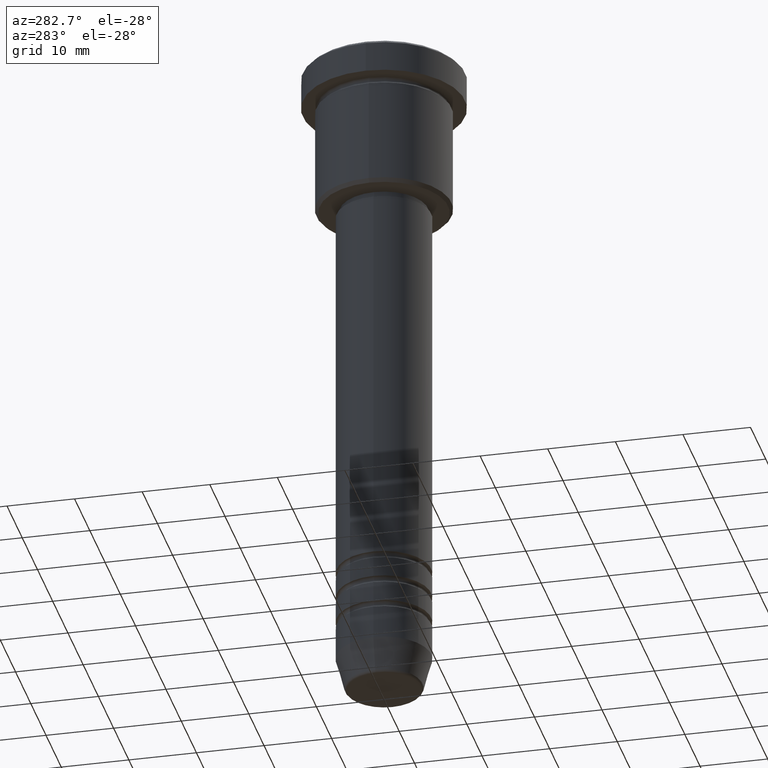
[diagram: clean part render]
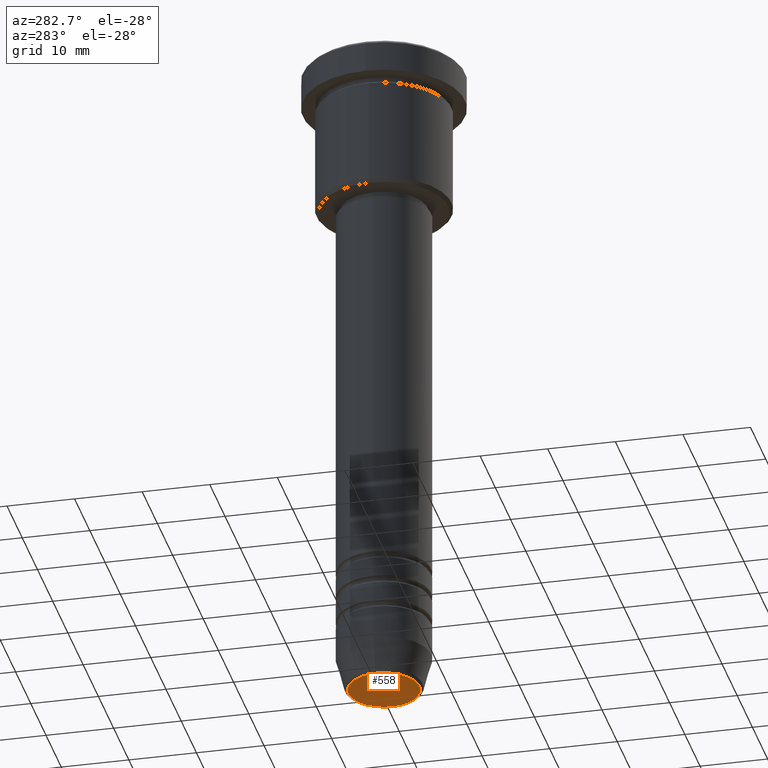
[diagram: same view with one face highlighted and labeled with its STEP entity id]
A machine part, auxiliary view. The second image highlights one B-rep face of the part: STEP entity #558.
In plain terms, the highlighted planar face has unit normal (0, -0, 1).
Its self-contained STEP definition (entity closure, byte-faithful):
#8 = CARTESIAN_POINT ( 'NONE',  ( 5.276590543854903004, 0.000000000000000000, -100.0000000000000000 ) ) ;
#9 = EDGE_CURVE ( 'NONE', #205, #74, #283, .T. ) ;
#19 = ORIENTED_EDGE ( 'NONE', *, *, #316, .T. ) ;
#74 = VERTEX_POINT ( 'NONE', #624 ) ;
#115 = EDGE_LOOP ( 'NONE', ( #334, #19 ) ) ;
#163 = DIRECTION ( 'NONE',  ( 1.000000000000000000, 0.000000000000000000, 0.000000000000000000 ) ) ;
#205 = VERTEX_POINT ( 'NONE', #8 ) ;
#283 = CIRCLE ( 'NONE', #791, 5.276590543854903004 ) ;
#316 = EDGE_CURVE ( 'NONE', #74, #205, #771, .T. ) ;
#329 = CARTESIAN_POINT ( 'NONE',  ( 0.000000000000000000, 0.000000000000000000, -100.0000000000000000 ) ) ;
#334 = ORIENTED_EDGE ( 'NONE', *, *, #9, .T. ) ;
#391 = DIRECTION ( 'NONE',  ( 1.000000000000000000, 0.000000000000000000, 0.000000000000000000 ) ) ;
#405 = DIRECTION ( 'NONE',  ( 1.000000000000000000, 0.000000000000000000, 0.000000000000000000 ) ) ;
#436 = FACE_OUTER_BOUND ( 'NONE', #115, .T. ) ;
#506 = PLANE ( 'NONE',  #1069 ) ;
#558 = ADVANCED_FACE ( 'NONE', ( #436 ), #506, .F. ) ;
#624 = CARTESIAN_POINT ( 'NONE',  ( -5.276590543854903004, 6.757689212787765916E-16, -100.0000000000000000 ) ) ;
#771 = CIRCLE ( 'NONE', #911, 5.276590543854903004 ) ;
#791 = AXIS2_PLACEMENT_3D ( 'NONE', #329, #987, #405 ) ;
#881 = DIRECTION ( 'NONE',  ( 0.000000000000000000, -0.000000000000000000, 1.000000000000000000 ) ) ;
#911 = AXIS2_PLACEMENT_3D ( 'NONE', #1026, #951, #391 ) ;
#951 = DIRECTION ( 'NONE',  ( 0.000000000000000000, 0.000000000000000000, -1.000000000000000000 ) ) ;
#978 = CARTESIAN_POINT ( 'NONE',  ( 0.000000000000000000, 0.000000000000000000, -100.0000000000000000 ) ) ;
#987 = DIRECTION ( 'NONE',  ( 0.000000000000000000, 0.000000000000000000, -1.000000000000000000 ) ) ;
#1026 = CARTESIAN_POINT ( 'NONE',  ( 0.000000000000000000, 0.000000000000000000, -100.0000000000000000 ) ) ;
#1069 = AXIS2_PLACEMENT_3D ( 'NONE', #978, #881, #163 ) ;